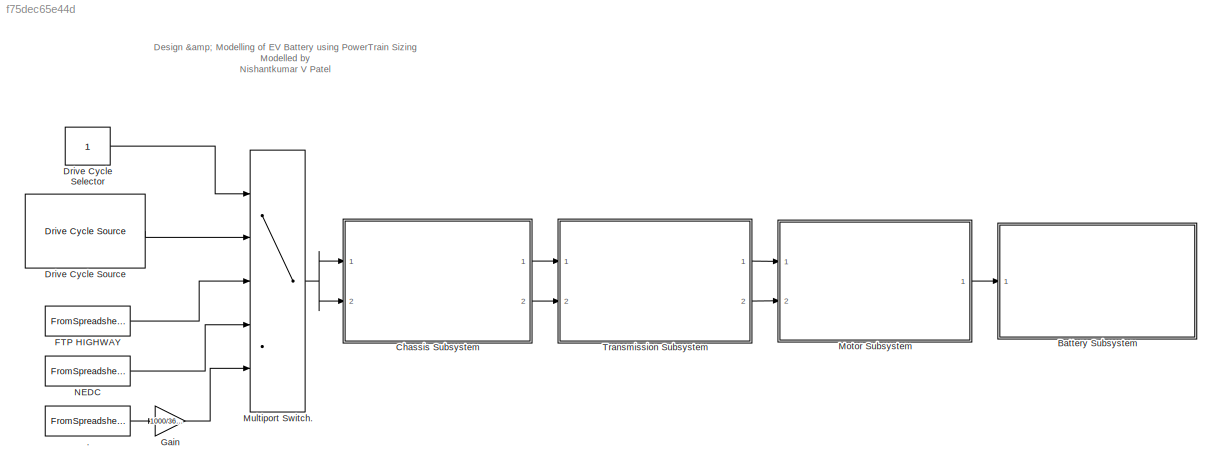
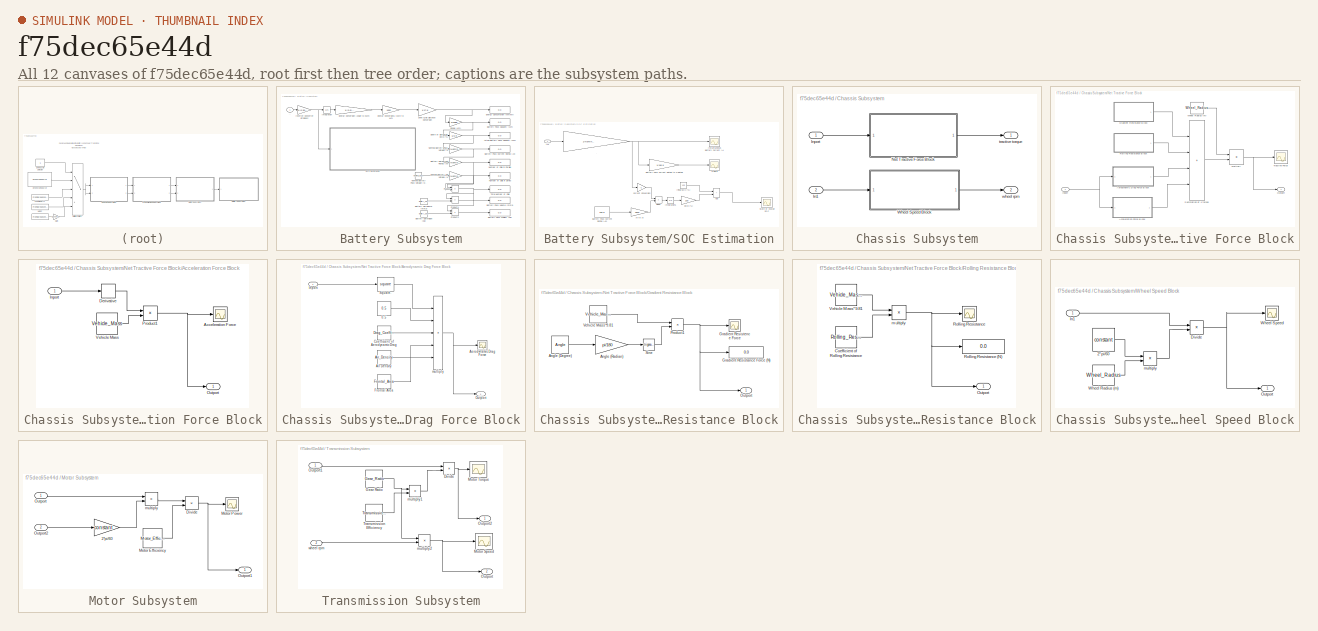
[diagram: thumbnail index - all 12 canvases of the model, root first then tree order]
MODEL slx_f75dec65e44d
KIND model
CONFIG AbsTol = auto
CONFIG EnableMultiTasking = off
CONFIG FixedStep = auto
CONFIG MaxStep = auto
CONFIG MinStep = auto
CONFIG RelTol = 1e-3
CONFIG SampleTimeConstraint = Unconstrained
CONFIG SolverName = VariableStepAuto
CONFIG StartTime = 0.0
CONFIG StopTime = 2474
BLOCK [FromSpreadsheet] .
  FileName = <userpath>/Desktop/Mathematical Modelling of Physical Systems/Modelling & Designing EV Battery using PowerTrain Sizing Calculations /Drive Cycle Excel Files/WLTP.xlsx
  Ports = [0, 1]
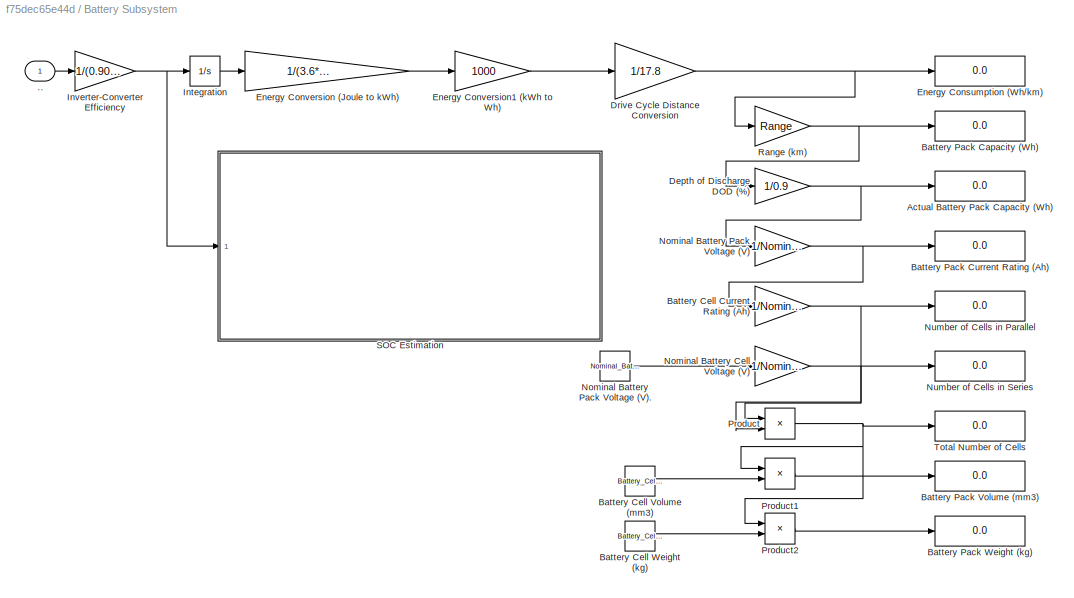
BLOCK [SubSystem] Battery Subsystem
  Ports = [1]
  RequestExecContextInheritance = off
BLOCK [Inport] Battery Subsystem/..
BLOCK [Display] Battery Subsystem/Actual Battery Pack Capacity (Wh)
  Decimation = 1
  Ports = [1]
BLOCK [Gain] Battery Subsystem/Battery Cell Current Rating (Ah)
  Gain = 1/Nominal_Battery_Cell_Current_Rating
BLOCK [Constant] Battery Subsystem/Battery Cell Volume (mm3)
  Value = Battery_Cell_Volume
BLOCK [Constant] Battery Subsystem/Battery Cell Weight (kg)
  Value = Battery_Cell_Weight
BLOCK [Display] Battery Subsystem/Battery Pack Capacity (Wh)
  Decimation = 1
  Ports = [1]
BLOCK [Display] Battery Subsystem/Battery Pack Current Rating (Ah)
  Decimation = 1
  Ports = [1]
BLOCK [Display] Battery Subsystem/Battery Pack Volume (mm3)
  Decimation = 1
  Ports = [1]
BLOCK [Display] Battery Subsystem/Battery Pack Weight (kg)
  Decimation = 1
  Ports = [1]
BLOCK [Gain] Battery Subsystem/Depth of Discharge DOD (%)
  Gain = 1/0.9
BLOCK [Gain] Battery Subsystem/Drive Cycle Distance Conversion
  Gain = 1/17.8
BLOCK [Display] Battery Subsystem/Energy Consumption (Wh//km)
  Decimation = 1
  Ports = [1]
BLOCK [Gain] Battery Subsystem/Energy Conversion (Joule to kWh) 
  Gain = 1/(3.6*10^6)
BLOCK [Gain] Battery Subsystem/Energy Conversion1 (kWh to Wh)
  Gain = 1000
BLOCK [Integrator] Battery Subsystem/Integration
  Ports = [1, 1]
BLOCK [Gain] Battery Subsystem/Inverter-Converter Efficiency
  Gain = 1/(0.90*0.90)
BLOCK [Gain] Battery Subsystem/Nominal Battery Cell Voltage (V)
  Gain = 1/Nominal_Battery_Cell_Voltage
BLOCK [Gain] Battery Subsystem/Nominal Battery Pack Voltage (V)
  Gain = 1/Nominal_Battery_Pack_Voltage
BLOCK [Constant] Battery Subsystem/Nominal Battery Pack Voltage (V).
  Value = Nominal_Battery_Pack_Voltage
BLOCK [Display] Battery Subsystem/Number of Cells in Parallel
  Decimation = 1
  Ports = [1]
BLOCK [Display] Battery Subsystem/Number of Cells in Series
  Decimation = 1
  Ports = [1]
BLOCK [Product] Battery Subsystem/Product
  Ports = [2, 1]
BLOCK [Product] Battery Subsystem/Product1
  Ports = [2, 1]
BLOCK [Product] Battery Subsystem/Product2
  Ports = [2, 1]
BLOCK [Gain] Battery Subsystem/Range (km)
  Gain = Range
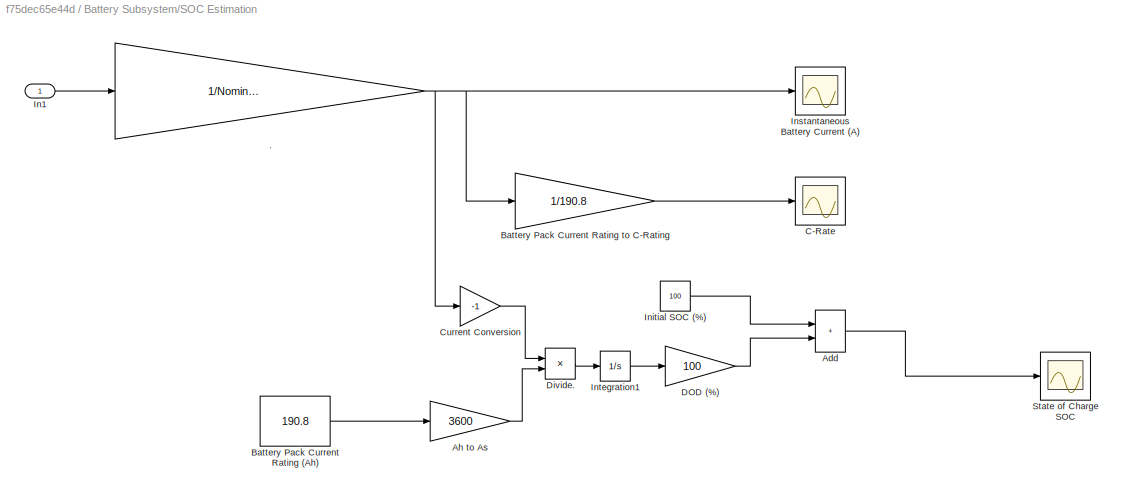
BLOCK [SubSystem] Battery Subsystem/SOC Estimation
  Ports = [1]
  RequestExecContextInheritance = off
BLOCK [Gain] Battery Subsystem/SOC Estimation/.
  Gain = 1/Nominal_Battery_Pack_Voltage
BLOCK [Sum] Battery Subsystem/SOC Estimation/Add
  IconShape = rectangular
  Ports = [2, 1]
BLOCK [Gain] Battery Subsystem/SOC Estimation/Ah to As
  Gain = 3600
BLOCK [Constant] Battery Subsystem/SOC Estimation/Battery Pack Current Rating (Ah) 
  Value = 190.8
BLOCK [Gain] Battery Subsystem/SOC Estimation/Battery Pack Current Rating to C-Rating
  Gain = 1/190.8
BLOCK [Scope] Battery Subsystem/SOC Estimation/C-Rate
  Floating = off
  NumInputPorts = 1
  Ports = [1]
  ScopeSpecificationString = Simulink.scopes.TimeScopeBlockCfg('CurrentConfiguration', extmgr.ConfigurationSet(extmgr.Configuration('Core','General UI',true),extmgr.Configuration('Core','Source UI',true),extmgr.Configuration('Sources','WiredSimulink',true,'DataLoggingVariableName','ScopeData6'),extmgr.Configuration('Visuals','Time Domain',true,'SerializedDisplays',{struct('MinYLimReal','-0.7807','MaxYLimReal','1.12262','YLabe...<+1396ch>
BLOCK [Gain] Battery Subsystem/SOC Estimation/Current Conversion
  Gain = -1
BLOCK [Gain] Battery Subsystem/SOC Estimation/DOD (%)
  Gain = 100
BLOCK [Product] Battery Subsystem/SOC Estimation/Divide. 
  Inputs = */
  Ports = [2, 1]
BLOCK [Inport] Battery Subsystem/SOC Estimation/In1
BLOCK [Constant] Battery Subsystem/SOC Estimation/Initial SOC (%)
  Value = 100
BLOCK [Scope] Battery Subsystem/SOC Estimation/Instantaneous Battery Current (A)
  Floating = off
  NumInputPorts = 1
  Ports = [1]
  ScopeSpecificationString = Simulink.scopes.TimeScopeBlockCfg('CurrentConfiguration', extmgr.ConfigurationSet(extmgr.Configuration('Core','General UI',true),extmgr.Configuration('Core','Source UI',true),extmgr.Configuration('Sources','WiredSimulink',true,'DataLoggingVariableName','ScopeData5'),extmgr.Configuration('Visuals','Time Domain',true,'SerializedDisplays',{struct('MinYLimReal','-148.95817','MaxYLimReal','214.19606','...<+1374ch>
BLOCK [Integrator] Battery Subsystem/SOC Estimation/Integration1
  Ports = [1, 1]
BLOCK [Scope] Battery Subsystem/SOC Estimation/State of Charge SOC
  Floating = off
  NumInputPorts = 1
  Ports = [1]
  ScopeSpecificationString = Simulink.scopes.TimeScopeBlockCfg('CurrentConfiguration', extmgr.ConfigurationSet(extmgr.Configuration('Core','General UI',true),extmgr.Configuration('Core','Source UI',true),extmgr.Configuration('Sources','WiredSimulink',true,'DataLoggingVariableName','ScopeData7'),extmgr.Configuration('Visuals','Time Domain',true,'SerializedDisplays',{struct('MinYLimReal','93.88501','MaxYLimReal','100.67944','YL...<+1372ch>
BLOCK [Display] Battery Subsystem/Total Number of Cells
  Decimation = 1
  Ports = [1]
BLOCK [SubSystem] Chassis Subsystem
  Ports = [2, 2]
  RequestExecContextInheritance = off
BLOCK [Outport] Chassis Subsystem/  wheel rpm
  Port = 2
BLOCK [Inport] Chassis Subsystem/In1
  Port = 2
BLOCK [Inport] Chassis Subsystem/Inport
BLOCK [SubSystem] Chassis Subsystem/Net Tractive Force Block
  Ports = [1, 1]
  RequestExecContextInheritance = off
BLOCK [SubSystem] Chassis Subsystem/Net Tractive Force Block/Acceleration Force Block
  Ports = [1, 1]
  RequestExecContextInheritance = off
BLOCK [Scope] Chassis Subsystem/Net Tractive Force Block/Acceleration Force Block/Acceleration Force
  Floating = off
  NumInputPorts = 1
  Ports = [1]
  ScopeSpecificationString = Simulink.scopes.TimeScopeBlockCfg('CurrentConfiguration', extmgr.ConfigurationSet(extmgr.Configuration('Core','General UI',true),extmgr.Configuration('Core','Source UI',true),extmgr.Configuration('Sources','WiredSimulink',true,'DataLoggingVariableName','ScopeData1'),extmgr.Configuration('Visuals','Time Domain',true,'SerializedDisplays',{struct('MinYLimReal','-1844.04','MaxYLimReal','1844.04','YLab...<+1371ch>
BLOCK [Derivative] Chassis Subsystem/Net Tractive Force Block/Acceleration Force Block/Derivative
BLOCK [Inport] Chassis Subsystem/Net Tractive Force Block/Acceleration Force Block/Inport
BLOCK [Outport] Chassis Subsystem/Net Tractive Force Block/Acceleration Force Block/Outport
BLOCK [Product] Chassis Subsystem/Net Tractive Force Block/Acceleration Force Block/Product1
  Ports = [2, 1]
BLOCK [Constant] Chassis Subsystem/Net Tractive Force Block/Acceleration Force Block/Vehicle Mass
  Value = Vehicle_Mass
BLOCK [SubSystem] Chassis Subsystem/Net Tractive Force Block/Aerodynamic Drag Force Block
  Ports = [1, 1]
  RequestExecContextInheritance = off
BLOCK [Constant] Chassis Subsystem/Net Tractive Force Block/Aerodynamic Drag Force Block/0.5
  Value = 0.5
BLOCK [Scope] Chassis Subsystem/Net Tractive Force Block/Aerodynamic Drag Force Block/Aerodynamic Drag Force
  Floating = off
  NumInputPorts = 1
  Ports = [1]
  ScopeSpecificationString = Simulink.scopes.TimeScopeBlockCfg('CurrentConfiguration', extmgr.ConfigurationSet(extmgr.Configuration('Core','General UI',true),extmgr.Configuration('Core','Source UI',true),extmgr.Configuration('Sources','WiredSimulink',true,'DataLoggingVariableName','ScopeData4'),extmgr.Configuration('Visuals','Time Domain',true),extmgr.Configuration('Tools','Plot Navigation',true),extmgr.Configuration('Tools',...<+40ch>
BLOCK [Constant] Chassis Subsystem/Net Tractive Force Block/Aerodynamic Drag Force Block/Air Density
  Value = Air_Density
BLOCK [Constant] Chassis Subsystem/Net Tractive Force Block/Aerodynamic Drag Force Block/Coefficient of Aerodynamic Drag
  Value = Drag_Coefficient
BLOCK [Constant] Chassis Subsystem/Net Tractive Force Block/Aerodynamic Drag Force Block/Frontal Area
  Value = Frontal_Area
BLOCK [Inport] Chassis Subsystem/Net Tractive Force Block/Aerodynamic Drag Force Block/Inport
BLOCK [Outport] Chassis Subsystem/Net Tractive Force Block/Aerodynamic Drag Force Block/Outport
BLOCK [Math] Chassis Subsystem/Net Tractive Force Block/Aerodynamic Drag Force Block/Square.
  Operator = square
  Ports = [1, 1]
BLOCK [Product] Chassis Subsystem/Net Tractive Force Block/Aerodynamic Drag Force Block/multiply
  Inputs = 5
  Ports = [5, 1]
BLOCK [SubSystem] Chassis Subsystem/Net Tractive Force Block/Gradient Resistance Block
  Ports = [0, 1]
  RequestExecContextInheritance = off
BLOCK [Constant] Chassis Subsystem/Net Tractive Force Block/Gradient Resistance Block/Angle (Degree)
  Value = Angle
BLOCK [Gain] Chassis Subsystem/Net Tractive Force Block/Gradient Resistance Block/Angle (Radian)
  Gain = pi/180
BLOCK [Display] Chassis Subsystem/Net Tractive Force Block/Gradient Resistance Block/Gradient Resistance Force (N)
  Decimation = 1
  Ports = [1]
BLOCK [Scope] Chassis Subsystem/Net Tractive Force Block/Gradient Resistance Block/Gradient Resistence Force
  Floating = off
  NumInputPorts = 1
  Ports = [1]
  ScopeSpecificationString = Simulink.scopes.TimeScopeBlockCfg('CurrentConfiguration', extmgr.ConfigurationSet(extmgr.Configuration('Core','General UI',true),extmgr.Configuration('Core','Source UI',true),extmgr.Configuration('Sources','WiredSimulink',true,'DataLoggingVariableName','ScopeData1'),extmgr.Configuration('Visuals','Time Domain',true),extmgr.Configuration('Tools','Plot Navigation',true),extmgr.Configuration('Tools',...<+40ch>
BLOCK [Outport] Chassis Subsystem/Net Tractive Force Block/Gradient Resistance Block/Outport
BLOCK [Product] Chassis Subsystem/Net Tractive Force Block/Gradient Resistance Block/Product1
  Ports = [2, 1]
BLOCK [Trigonometry] Chassis Subsystem/Net Tractive Force Block/Gradient Resistance Block/Sine
  Ports = [1, 1]
BLOCK [Constant] Chassis Subsystem/Net Tractive Force Block/Gradient Resistance Block/Vehicle Mass*9.81
  Value = Vehicle_Mass*9.81
BLOCK [Inport] Chassis Subsystem/Net Tractive Force Block/Inport
BLOCK [Outport] Chassis Subsystem/Net Tractive Force Block/Outport
BLOCK [SubSystem] Chassis Subsystem/Net Tractive Force Block/Rolling Resistance Block
  Ports = [0, 1]
  RequestExecContextInheritance = off
BLOCK [Constant] Chassis Subsystem/Net Tractive Force Block/Rolling Resistance Block/Coefficient of Rolling Resistance
  Value = Rolling_Resistance_Coefficient
BLOCK [Outport] Chassis Subsystem/Net Tractive Force Block/Rolling Resistance Block/Outport
BLOCK [Scope] Chassis Subsystem/Net Tractive Force Block/Rolling Resistance Block/Rolling Resistance
  Floating = off
  NumInputPorts = 1
  Ports = [1]
  ScopeSpecificationString = Simulink.scopes.TimeScopeBlockCfg('CurrentConfiguration', extmgr.ConfigurationSet(extmgr.Configuration('Core','General UI',true),extmgr.Configuration('Core','Source UI',true),extmgr.Configuration('Sources','WiredSimulink',true,'DataLoggingVariableName','ScopeData3'),extmgr.Configuration('Visuals','Time Domain',true),extmgr.Configuration('Tools','Plot Navigation',true),extmgr.Configuration('Tools',...<+40ch>
BLOCK [Display] Chassis Subsystem/Net Tractive Force Block/Rolling Resistance Block/Rolling Resistance (N)
  Decimation = 1
  Ports = [1]
BLOCK [Constant] Chassis Subsystem/Net Tractive Force Block/Rolling Resistance Block/Vehicle Mass*9.81
  Value = Vehicle_Mass*9.81
BLOCK [Product] Chassis Subsystem/Net Tractive Force Block/Rolling Resistance Block/multiply
  Ports = [2, 1]
BLOCK [Sum] Chassis Subsystem/Net Tractive Force Block/Summation of 4 forces
  IconShape = rectangular
  Inputs = ++++
  Ports = [4, 1]
BLOCK [Scope] Chassis Subsystem/Net Tractive Force Block/Tractive Force
  Floating = off
  NumInputPorts = 1
  Ports = [1]
  ScopeSpecificationString = Simulink.scopes.TimeScopeBlockCfg('CurrentConfiguration', extmgr.ConfigurationSet(extmgr.Configuration('Core','General UI',true),extmgr.Configuration('Core','Source UI',true),extmgr.Configuration('Sources','WiredSimulink',true,'DataLoggingVariableName','ScopeData8'),extmgr.Configuration('Visuals','Time Domain',true,'SerializedDisplays',{struct('MinYLimReal','-496.01296','MaxYLimReal','627.02063','...<+1381ch>
BLOCK [Constant] Chassis Subsystem/Net Tractive Force Block/Wheel Radius (m)
  Value = Wheel_Radius
BLOCK [Product] Chassis Subsystem/Net Tractive Force Block/multiply
  Ports = [2, 1]
BLOCK [SubSystem] Chassis Subsystem/Wheel Speed Block
  Ports = [1, 1]
  RequestExecContextInheritance = off
BLOCK [Constant] Chassis Subsystem/Wheel Speed Block/2*pi//60
  Value = constant
BLOCK [Product] Chassis Subsystem/Wheel Speed Block/Divide
  Inputs = */
  Ports = [2, 1]
BLOCK [Inport] Chassis Subsystem/Wheel Speed Block/In1
BLOCK [Outport] Chassis Subsystem/Wheel Speed Block/Outport
BLOCK [Constant] Chassis Subsystem/Wheel Speed Block/Wheel Radius (m)
  Value = Wheel_Radius
BLOCK [Scope] Chassis Subsystem/Wheel Speed Block/Wheel Speed
  Floating = off
  NumInputPorts = 1
  Ports = [1]
  ScopeSpecificationString = Simulink.scopes.TimeScopeBlockCfg('CurrentConfiguration', extmgr.ConfigurationSet(extmgr.Configuration('Core','General UI',true),extmgr.Configuration('Core','Source UI',true),extmgr.Configuration('Sources','WiredSimulink',true),extmgr.Configuration('Visuals','Time Domain',true,'SerializedDisplays',{struct('MinYLimReal','-100.85318','MaxYLimReal','907.67859','YLabelReal','','MinYLimMag',' 0.00000',...<+1340ch>
BLOCK [Product] Chassis Subsystem/Wheel Speed Block/multiply
  Ports = [2, 1]
BLOCK [Outport] Chassis Subsystem/tractive torque 
BLOCK [Constant] Drive Cycle Selector
BLOCK [Reference] Drive Cycle Source  REF=autolibshared/Drive Cycle Source
  AttributesFormatString = %<cycleVar> (%<tfinal>)
  Ports = [0, 1]
  SourceBlock = autolibshared/Drive Cycle Source
  SourceProductBaseCode = PW,DR,MT,VE
  SourceType = Drive Cycle Source
BLOCK [FromSpreadsheet] FTP HIGHWAY
  FileName = <userpath>/Desktop/Mathematical Modelling of Physical Systems/Modelling & Designing EV Battery using PowerTrain Sizing Calculations /Drive Cycle Excel Files/FTP_HIGHWAY.xlsx
  Ports = [0, 1]
BLOCK [Gain] Gain
  Gain = 1000/3600
BLOCK [SubSystem] Motor Subsystem
  Ports = [2, 1]
  RequestExecContextInheritance = off
BLOCK [Gain] Motor Subsystem/2*pi//60
  Gain = constant
BLOCK [Product] Motor Subsystem/Divide
  Inputs = */
  Ports = [2, 1]
BLOCK [Constant] Motor Subsystem/Motor Efficiency
  Value = Motor_Efficiency
BLOCK [Scope] Motor Subsystem/Motor Power
  Floating = off
  NumInputPorts = 1
  Ports = [1]
  ScopeSpecificationString = Simulink.scopes.TimeScopeBlockCfg('CurrentConfiguration', extmgr.ConfigurationSet(extmgr.Configuration('Core','General UI',true),extmgr.Configuration('Core','Source UI',true),extmgr.Configuration('Sources','WiredSimulink',true,'DataLoggingVariableName','ScopeData4'),extmgr.Configuration('Visuals','Time Domain',true,'SerializedDisplays',{struct('MinYLimReal','-26544.34524','MaxYLimReal','38169.7382...<+1395ch>
BLOCK [Inport] Motor Subsystem/Outport
BLOCK [Outport] Motor Subsystem/Outport1
BLOCK [Inport] Motor Subsystem/Outport2
  Port = 2
BLOCK [Product] Motor Subsystem/multiply
  Ports = [2, 1]
BLOCK [MultiPortSwitch] Multiport Switch.
  InputSameDT = off
  Inputs = 4
  Ports = [5, 1]
  SaturateOnIntegerOverflow = off
BLOCK [FromSpreadsheet] NEDC
  FileName = <userpath>/Desktop/Mathematical Modelling of Physical Systems/Modelling & Designing EV Battery using PowerTrain Sizing Calculations /Drive Cycle Excel Files/NEDC.xlsx
  Ports = [0, 1]
BLOCK [SubSystem] Transmission Subsystem
  Ports = [2, 2]
  RequestExecContextInheritance = off
BLOCK [Inport] Transmission Subsystem/  wheel rpm
  Port = 2
BLOCK [Product] Transmission Subsystem/Divide
  Inputs = */
  Ports = [2, 1]
BLOCK [Constant] Transmission Subsystem/Gear Ratio
  Value = Gear_Ratio
BLOCK [Scope] Transmission Subsystem/Motor Speed
  Floating = off
  NumInputPorts = 1
  Ports = [1]
  ScopeSpecificationString = Simulink.scopes.TimeScopeBlockCfg('CurrentConfiguration', extmgr.ConfigurationSet(extmgr.Configuration('Core','General UI',true),extmgr.Configuration('Core','Source UI',true),extmgr.Configuration('Sources','WiredSimulink',true,'DataLoggingVariableName','ScopeData3'),extmgr.Configuration('Visuals','Time Domain',true,'SerializedDisplays',{struct('MinYLimReal','-907.67859','MaxYLimReal','8169.10734',...<+1386ch>
BLOCK [Scope] Transmission Subsystem/Motor Torque
  Floating = off
  NumInputPorts = 1
  Ports = [1]
  ScopeSpecificationString = Simulink.scopes.TimeScopeBlockCfg('CurrentConfiguration', extmgr.ConfigurationSet(extmgr.Configuration('Core','General UI',true),extmgr.Configuration('Core','Source UI',true),extmgr.Configuration('Sources','WiredSimulink',true,'DataLoggingVariableName','ScopeData2'),extmgr.Configuration('Visuals','Time Domain',true,'SerializedDisplays',{struct('MinYLimReal','-68.89069','MaxYLimReal','87.0862','YLa...<+1367ch>
BLOCK [Outport] Transmission Subsystem/Outport
  Port = 2
BLOCK [Inport] Transmission Subsystem/Outport1
BLOCK [Outport] Transmission Subsystem/Outport2
BLOCK [Constant] Transmission Subsystem/Transmission Efficiency
  Value = Transmission_Efficiency
BLOCK [Product] Transmission Subsystem/multiply1
  Ports = [2, 1]
BLOCK [Product] Transmission Subsystem/multiply2
  Ports = [2, 1]
ANNOTATION (root): Design & Modelling of EV Battery using PowerTrain Sizing Modelled by Nishantkumar V Patel
LINE .:1 -> Gain:1
LINE Battery Subsystem/..:1 -> Battery Subsystem/Inverter-Converter Efficiency:1
NET Battery Subsystem/Battery Cell Current Rating (Ah):1 -> Battery Subsystem/Number of Cells in Parallel:1, Battery Subsystem/Product:1
LINE Battery Subsystem/Battery Cell Volume (mm3):1 -> Battery Subsystem/Product1:2
LINE Battery Subsystem/Battery Cell Weight (kg):1 -> Battery Subsystem/Product2:2
NET Battery Subsystem/Depth of Discharge DOD (%):1 -> Battery Subsystem/Actual Battery Pack Capacity (Wh):1, Battery Subsystem/Nominal Battery Pack Voltage (V):1
NET Battery Subsystem/Drive Cycle Distance Conversion:1 -> Battery Subsystem/Energy Consumption (Wh//km):1, Battery Subsystem/Range (km):1
LINE Battery Subsystem/Energy Conversion (Joule to kWh) :1 -> Battery Subsystem/Energy Conversion1 (kWh to Wh):1
LINE Battery Subsystem/Energy Conversion1 (kWh to Wh):1 -> Battery Subsystem/Drive Cycle Distance Conversion:1
LINE Battery Subsystem/Integration:1 -> Battery Subsystem/Energy Conversion (Joule to kWh) :1
NET Battery Subsystem/Inverter-Converter Efficiency:1 -> Battery Subsystem/Integration:1, Battery Subsystem/SOC Estimation:1
NET Battery Subsystem/Nominal Battery Cell Voltage (V):1 -> Battery Subsystem/Number of Cells in Series:1, Battery Subsystem/Product:2
LINE Battery Subsystem/Nominal Battery Pack Voltage (V).:1 -> Battery Subsystem/Nominal Battery Cell Voltage (V):1
NET Battery Subsystem/Nominal Battery Pack Voltage (V):1 -> Battery Subsystem/Battery Cell Current Rating (Ah):1, Battery Subsystem/Battery Pack Current Rating (Ah):1
LINE Battery Subsystem/Product1:1 -> Battery Subsystem/Battery Pack Volume (mm3):1
LINE Battery Subsystem/Product2:1 -> Battery Subsystem/Battery Pack Weight (kg):1
NET Battery Subsystem/Product:1 -> Battery Subsystem/Product1:1, Battery Subsystem/Product2:1, Battery Subsystem/Total Number of Cells:1
NET Battery Subsystem/Range (km):1 -> Battery Subsystem/Battery Pack Capacity (Wh):1, Battery Subsystem/Depth of Discharge DOD (%):1
NET Battery Subsystem/SOC Estimation/.:1 -> Battery Subsystem/SOC Estimation/Battery Pack Current Rating to C-Rating:1, Battery Subsystem/SOC Estimation/Current Conversion:1, Battery Subsystem/SOC Estimation/Instantaneous Battery Current (A):1
LINE Battery Subsystem/SOC Estimation/Add:1 -> Battery Subsystem/SOC Estimation/State of Charge SOC:1
LINE Battery Subsystem/SOC Estimation/Ah to As:1 -> Battery Subsystem/SOC Estimation/Divide. :2
LINE Battery Subsystem/SOC Estimation/Battery Pack Current Rating (Ah) :1 -> Battery Subsystem/SOC Estimation/Ah to As:1
LINE Battery Subsystem/SOC Estimation/Battery Pack Current Rating to C-Rating:1 -> Battery Subsystem/SOC Estimation/C-Rate:1
LINE Battery Subsystem/SOC Estimation/Current Conversion:1 -> Battery Subsystem/SOC Estimation/Divide. :1
LINE Battery Subsystem/SOC Estimation/DOD (%):1 -> Battery Subsystem/SOC Estimation/Add:2
LINE Battery Subsystem/SOC Estimation/Divide. :1 -> Battery Subsystem/SOC Estimation/Integration1:1
LINE Battery Subsystem/SOC Estimation/In1:1 -> Battery Subsystem/SOC Estimation/.:1
LINE Battery Subsystem/SOC Estimation/Initial SOC (%):1 -> Battery Subsystem/SOC Estimation/Add:1
LINE Battery Subsystem/SOC Estimation/Integration1:1 -> Battery Subsystem/SOC Estimation/DOD (%):1
LINE Chassis Subsystem/In1:1 -> Chassis Subsystem/Wheel Speed Block:1
LINE Chassis Subsystem/Inport:1 -> Chassis Subsystem/Net Tractive Force Block:1
LINE Chassis Subsystem/Net Tractive Force Block/Acceleration Force Block/Derivative:1 -> Chassis Subsystem/Net Tractive Force Block/Acceleration Force Block/Product1:1
LINE Chassis Subsystem/Net Tractive Force Block/Acceleration Force Block/Inport:1 -> Chassis Subsystem/Net Tractive Force Block/Acceleration Force Block/Derivative:1
NET Chassis Subsystem/Net Tractive Force Block/Acceleration Force Block/Product1:1 -> Chassis Subsystem/Net Tractive Force Block/Acceleration Force Block/Acceleration Force:1, Chassis Subsystem/Net Tractive Force Block/Acceleration Force Block/Outport:1
LINE Chassis Subsystem/Net Tractive Force Block/Acceleration Force Block/Vehicle Mass:1 -> Chassis Subsystem/Net Tractive Force Block/Acceleration Force Block/Product1:2
LINE Chassis Subsystem/Net Tractive Force Block/Acceleration Force Block:1 -> Chassis Subsystem/Net Tractive Force Block/Summation of 4 forces:4
LINE Chassis Subsystem/Net Tractive Force Block/Aerodynamic Drag Force Block/0.5:1 -> Chassis Subsystem/Net Tractive Force Block/Aerodynamic Drag Force Block/multiply:2
LINE Chassis Subsystem/Net Tractive Force Block/Aerodynamic Drag Force Block/Air Density:1 -> Chassis Subsystem/Net Tractive Force Block/Aerodynamic Drag Force Block/multiply:4
LINE Chassis Subsystem/Net Tractive Force Block/Aerodynamic Drag Force Block/Coefficient of Aerodynamic Drag:1 -> Chassis Subsystem/Net Tractive Force Block/Aerodynamic Drag Force Block/multiply:3
LINE Chassis Subsystem/Net Tractive Force Block/Aerodynamic Drag Force Block/Frontal Area:1 -> Chassis Subsystem/Net Tractive Force Block/Aerodynamic Drag Force Block/multiply:5
LINE Chassis Subsystem/Net Tractive Force Block/Aerodynamic Drag Force Block/Inport:1 -> Chassis Subsystem/Net Tractive Force Block/Aerodynamic Drag Force Block/Square.:1
LINE Chassis Subsystem/Net Tractive Force Block/Aerodynamic Drag Force Block/Square.:1 -> Chassis Subsystem/Net Tractive Force Block/Aerodynamic Drag Force Block/multiply:1
NET Chassis Subsystem/Net Tractive Force Block/Aerodynamic Drag Force Block/multiply:1 -> Chassis Subsystem/Net Tractive Force Block/Aerodynamic Drag Force Block/Aerodynamic Drag Force:1, Chassis Subsystem/Net Tractive Force Block/Aerodynamic Drag Force Block/Outport:1
LINE Chassis Subsystem/Net Tractive Force Block/Aerodynamic Drag Force Block:1 -> Chassis Subsystem/Net Tractive Force Block/Summation of 4 forces:3
LINE Chassis Subsystem/Net Tractive Force Block/Gradient Resistance Block/Angle (Degree):1 -> Chassis Subsystem/Net Tractive Force Block/Gradient Resistance Block/Angle (Radian):1
LINE Chassis Subsystem/Net Tractive Force Block/Gradient Resistance Block/Angle (Radian):1 -> Chassis Subsystem/Net Tractive Force Block/Gradient Resistance Block/Sine:1
NET Chassis Subsystem/Net Tractive Force Block/Gradient Resistance Block/Product1:1 -> Chassis Subsystem/Net Tractive Force Block/Gradient Resistance Block/Gradient Resistance Force (N):1, Chassis Subsystem/Net Tractive Force Block/Gradient Resistance Block/Gradient Resistence Force:1, Chassis Subsystem/Net Tractive Force Block/Gradient Resistance Block/Outport:1
LINE Chassis Subsystem/Net Tractive Force Block/Gradient Resistance Block/Sine:1 -> Chassis Subsystem/Net Tractive Force Block/Gradient Resistance Block/Product1:2
LINE Chassis Subsystem/Net Tractive Force Block/Gradient Resistance Block/Vehicle Mass*9.81:1 -> Chassis Subsystem/Net Tractive Force Block/Gradient Resistance Block/Product1:1
LINE Chassis Subsystem/Net Tractive Force Block/Gradient Resistance Block:1 -> Chassis Subsystem/Net Tractive Force Block/Summation of 4 forces:1
NET Chassis Subsystem/Net Tractive Force Block/Inport:1 -> Chassis Subsystem/Net Tractive Force Block/Acceleration Force Block:1, Chassis Subsystem/Net Tractive Force Block/Aerodynamic Drag Force Block:1
LINE Chassis Subsystem/Net Tractive Force Block/Rolling Resistance Block/Coefficient of Rolling Resistance:1 -> Chassis Subsystem/Net Tractive Force Block/Rolling Resistance Block/multiply:2
LINE Chassis Subsystem/Net Tractive Force Block/Rolling Resistance Block/Vehicle Mass*9.81:1 -> Chassis Subsystem/Net Tractive Force Block/Rolling Resistance Block/multiply:1
NET Chassis Subsystem/Net Tractive Force Block/Rolling Resistance Block/multiply:1 -> Chassis Subsystem/Net Tractive Force Block/Rolling Resistance Block/Outport:1, Chassis Subsystem/Net Tractive Force Block/Rolling Resistance Block/Rolling Resistance (N):1, Chassis Subsystem/Net Tractive Force Block/Rolling Resistance Block/Rolling Resistance:1
LINE Chassis Subsystem/Net Tractive Force Block/Rolling Resistance Block:1 -> Chassis Subsystem/Net Tractive Force Block/Summation of 4 forces:2
LINE Chassis Subsystem/Net Tractive Force Block/Summation of 4 forces:1 -> Chassis Subsystem/Net Tractive Force Block/multiply:2
LINE Chassis Subsystem/Net Tractive Force Block/Wheel Radius (m):1 -> Chassis Subsystem/Net Tractive Force Block/multiply:1
NET Chassis Subsystem/Net Tractive Force Block/multiply:1 -> Chassis Subsystem/Net Tractive Force Block/Outport:1, Chassis Subsystem/Net Tractive Force Block/Tractive Force:1
LINE Chassis Subsystem/Net Tractive Force Block:1 -> Chassis Subsystem/tractive torque :1
LINE Chassis Subsystem/Wheel Speed Block/2*pi//60:1 -> Chassis Subsystem/Wheel Speed Block/multiply:1
NET Chassis Subsystem/Wheel Speed Block/Divide:1 -> Chassis Subsystem/Wheel Speed Block/Outport:1, Chassis Subsystem/Wheel Speed Block/Wheel Speed:1
LINE Chassis Subsystem/Wheel Speed Block/In1:1 -> Chassis Subsystem/Wheel Speed Block/Divide:1
LINE Chassis Subsystem/Wheel Speed Block/Wheel Radius (m):1 -> Chassis Subsystem/Wheel Speed Block/multiply:2
LINE Chassis Subsystem/Wheel Speed Block/multiply:1 -> Chassis Subsystem/Wheel Speed Block/Divide:2
LINE Chassis Subsystem/Wheel Speed Block:1 -> Chassis Subsystem/  wheel rpm:1
LINE Chassis Subsystem:1 -> Transmission Subsystem:1
LINE Chassis Subsystem:2 -> Transmission Subsystem:2
LINE Drive Cycle Selector:1 -> Multiport Switch.:1
LINE Drive Cycle Source:1 -> Multiport Switch.:2
LINE FTP HIGHWAY:1 -> Multiport Switch.:3
LINE Gain:1 -> Multiport Switch.:5
LINE Motor Subsystem/2*pi//60:1 -> Motor Subsystem/multiply:2
NET Motor Subsystem/Divide:1 -> Motor Subsystem/Motor Power:1, Motor Subsystem/Outport1:1
LINE Motor Subsystem/Motor Efficiency:1 -> Motor Subsystem/Divide:2
LINE Motor Subsystem/Outport2:1 -> Motor Subsystem/2*pi//60:1
LINE Motor Subsystem/Outport:1 -> Motor Subsystem/multiply:1
LINE Motor Subsystem/multiply:1 -> Motor Subsystem/Divide:1
LINE Motor Subsystem:1 -> Battery Subsystem:1
NET Multiport Switch.:1 -> Chassis Subsystem:1, Chassis Subsystem:2
LINE NEDC:1 -> Multiport Switch.:4
LINE Transmission Subsystem/  wheel rpm:1 -> Transmission Subsystem/multiply2:2
NET Transmission Subsystem/Divide:1 -> Transmission Subsystem/Motor Torque:1, Transmission Subsystem/Outport2:1
NET Transmission Subsystem/Gear Ratio:1 -> Transmission Subsystem/multiply1:1, Transmission Subsystem/multiply2:1
LINE Transmission Subsystem/Outport1:1 -> Transmission Subsystem/Divide:1
LINE Transmission Subsystem/Transmission Efficiency:1 -> Transmission Subsystem/multiply1:2
LINE Transmission Subsystem/multiply1:1 -> Transmission Subsystem/Divide:2
NET Transmission Subsystem/multiply2:1 -> Transmission Subsystem/Motor Speed:1, Transmission Subsystem/Outport:1
LINE Transmission Subsystem:1 -> Motor Subsystem:1
LINE Transmission Subsystem:2 -> Motor Subsystem:2
note: NET lines group one-source signal fan-out (src -> all destinations, sorted); 1:1 wires keep LINE
